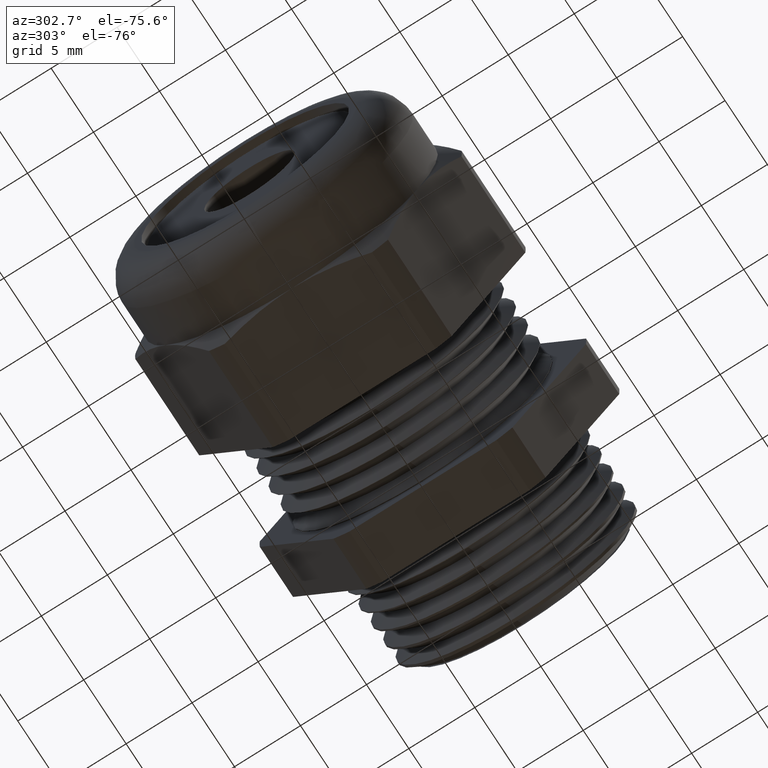
[diagram: clean part render]
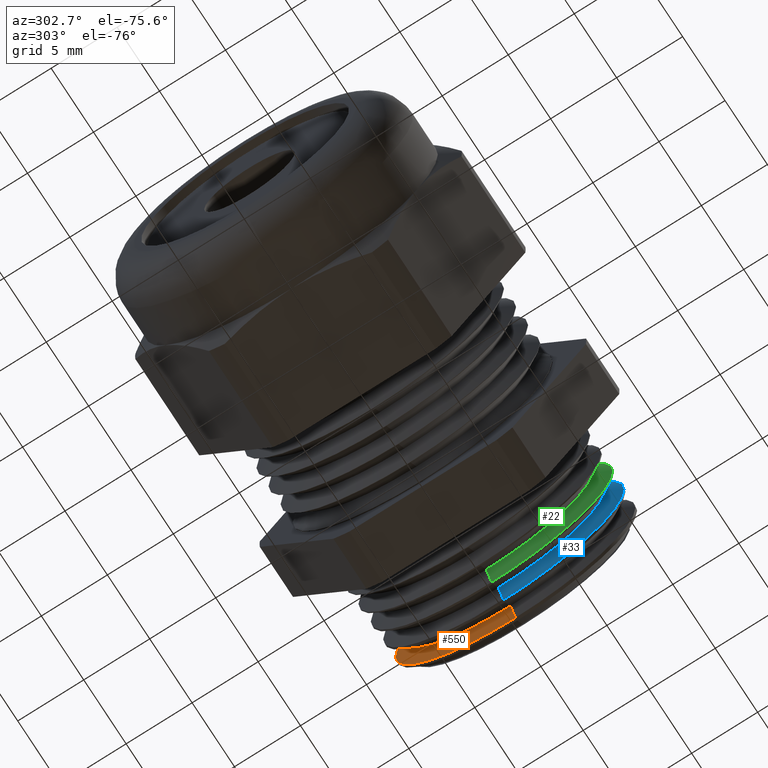
[diagram: same view with three faces highlighted in distinct colors, each labeled with its STEP entity id]
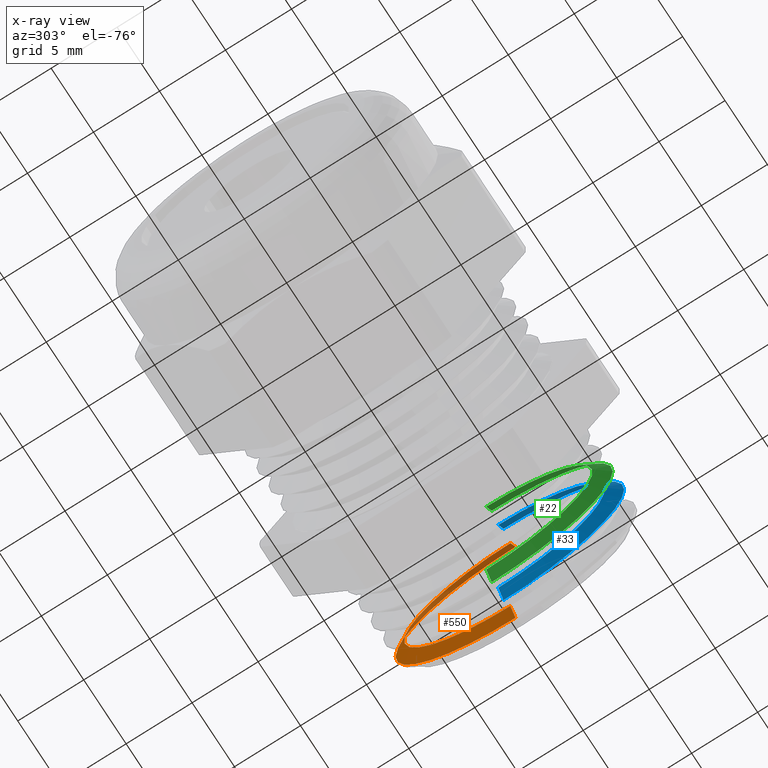
[diagram: x-ray of the same camera — body ghosted, the three highlighted faces saturated]
A machine part, auxiliary view with three faces highlighted in distinct colors.
The next image is the same camera in x-ray (body ghosted, the three faces saturated) — at least one of them is partly hidden behind the body in this view.
Their STEP definitions:

[orange] entity #550 — the highlighted conical surface has half-angle 60 deg.
#501 = ORIENTED_EDGE ( 'NONE', *, *, #504, .F. ) ;
#504 = EDGE_CURVE ( 'NONE', #548, #522, #3423, .T. ) ;
#522 = VERTEX_POINT ( 'NONE', #3503 ) ;
#533 = EDGE_CURVE ( 'NONE', #535, #522, #3541, .T. ) ;
#534 = ORIENTED_EDGE ( 'NONE', *, *, #533, .T. ) ;
#535 = VERTEX_POINT ( 'NONE', #3536 ) ;
#541 = VERTEX_POINT ( 'NONE', #3524 ) ;
#542 = ORIENTED_EDGE ( 'NONE', *, *, #553, .T. ) ;
#547 = EDGE_CURVE ( 'NONE', #541, #548, #796, .T. ) ;
#548 = VERTEX_POINT ( 'NONE', #791 ) ;
#549 = ORIENTED_EDGE ( 'NONE', *, *, #547, .F. ) ;
#550 = ADVANCED_FACE ( 'NONE', ( #790 ), #789, .T. ) ;
#551 = EDGE_LOOP ( 'NONE', ( #549, #542, #534, #501 ) ) ;
#553 = EDGE_CURVE ( 'NONE', #541, #535, #788, .T. ) ;
#781 = DIRECTION ( 'NONE',  ( 0.5000000000000010000, 1.060575238724906100E-016, 0.8660254037844379300 ) ) ;
#782 = VECTOR ( 'NONE', #781, 39.37007874015748900 ) ;
#783 = CARTESIAN_POINT ( 'NONE',  ( 0.2519316979139036800, 3.877487473227224100E-017, 0.3166208800714525600 ) ) ;
#784 = DIRECTION ( 'NONE',  ( 0.0000000000000000000, 0.0000000000000000000, -1.000000000000000000 ) ) ;
#785 = DIRECTION ( 'NONE',  ( 1.000000000000000000, 0.0000000000000000000, 0.0000000000000000000 ) ) ;
#786 = CARTESIAN_POINT ( 'NONE',  ( 0.2519316979139036800, 0.0000000000000000000, 0.0000000000000000000 ) ) ;
#787 = AXIS2_PLACEMENT_3D ( 'NONE', #786, #785, #784 ) ;
#788 = LINE ( 'NONE', #783, #782 ) ;
#789 = CONICAL_SURFACE ( 'NONE', #787, 0.3166208800714525600, 1.047197551196596500 ) ;
#790 = FACE_OUTER_BOUND ( 'NONE', #551, .T. ) ;
#791 = CARTESIAN_POINT ( 'NONE',  ( 0.2519316979139036800, 4.137256078826623000E-017, -0.3166208800714525600 ) ) ;
#792 = DIRECTION ( 'NONE',  ( 0.0000000000000000000, 0.0000000000000000000, 1.000000000000000000 ) ) ;
#793 = DIRECTION ( 'NONE',  ( -1.000000000000000000, 0.0000000000000000000, 0.0000000000000000000 ) ) ;
#794 = CARTESIAN_POINT ( 'NONE',  ( 0.2519316979139036800, 0.0000000000000000000, 0.0000000000000000000 ) ) ;
#795 = AXIS2_PLACEMENT_3D ( 'NONE', #794, #793, #792 ) ;
#796 = CIRCLE ( 'NONE', #795, 0.3166208800714525600 ) ;
#3423 = LINE ( 'NONE', #3487, #3486 ) ;
#3485 = DIRECTION ( 'NONE',  ( 0.5000000000000010000, 0.0000000000000000000, -0.8660254037844379300 ) ) ;
#3486 = VECTOR ( 'NONE', #3485, 39.37007874015748900 ) ;
#3487 = CARTESIAN_POINT ( 'NONE',  ( 0.2519316979139036800, 0.0000000000000000000, -0.3166208800714525600 ) ) ;
#3503 = CARTESIAN_POINT ( 'NONE',  ( 0.2756953103750446900, 4.381549452406048200E-017, -0.3577806642255264000 ) ) ;
#3524 = CARTESIAN_POINT ( 'NONE',  ( 0.2519316979139036800, 0.0000000000000000000, 0.3166208800714525600 ) ) ;
#3536 = CARTESIAN_POINT ( 'NONE',  ( 0.2756953103750446900, 0.0000000000000000000, 0.3577806642255264000 ) ) ;
#3537 = DIRECTION ( 'NONE',  ( 0.0000000000000000000, 0.0000000000000000000, -1.000000000000000000 ) ) ;
#3538 = DIRECTION ( 'NONE',  ( -1.000000000000000000, 0.0000000000000000000, 0.0000000000000000000 ) ) ;
#3539 = CARTESIAN_POINT ( 'NONE',  ( 0.2756953103750446900, 0.0000000000000000000, 0.0000000000000000000 ) ) ;
#3540 = AXIS2_PLACEMENT_3D ( 'NONE', #3539, #3538, #3537 ) ;
#3541 = CIRCLE ( 'NONE', #3540, 0.3577806642255263500 ) ;

[blue] entity #33 — the highlighted conical surface has half-angle 60 deg.
#25 = ORIENTED_EDGE ( 'NONE', *, *, #2158, .T. ) ;
#29 = EDGE_LOOP ( 'NONE', ( #30, #31, #32, #25 ) ) ;
#30 = ORIENTED_EDGE ( 'NONE', *, *, #568, .F. ) ;
#31 = ORIENTED_EDGE ( 'NONE', *, *, #409, .F. ) ;
#32 = ORIENTED_EDGE ( 'NONE', *, *, #560, .T. ) ;
#33 = ADVANCED_FACE ( 'NONE', ( #2611 ), #2610, .T. ) ;
#409 = EDGE_CURVE ( 'NONE', #585, #593, #3329, .T. ) ;
#556 = VERTEX_POINT ( 'NONE', #774 ) ;
#560 = EDGE_CURVE ( 'NONE', #585, #556, #830, .T. ) ;
#565 = VERTEX_POINT ( 'NONE', #811 ) ;
#568 = EDGE_CURVE ( 'NONE', #593, #565, #810, .T. ) ;
#585 = VERTEX_POINT ( 'NONE', #847 ) ;
#593 = VERTEX_POINT ( 'NONE', #894 ) ;
#774 = CARTESIAN_POINT ( 'NONE',  ( 0.2205293343625839300, 4.399240356199792900E-017, -0.3592252361466763400 ) ) ;
#807 = DIRECTION ( 'NONE',  ( 0.5000000000000010000, 1.060575238724906100E-016, 0.8660254037844379300 ) ) ;
#808 = VECTOR ( 'NONE', #807, 39.37007874015748900 ) ;
#809 = CARTESIAN_POINT ( 'NONE',  ( 0.1959316979139036900, 3.877487473227224100E-017, 0.3166208800714525600 ) ) ;
#810 = LINE ( 'NONE', #809, #808 ) ;
#811 = CARTESIAN_POINT ( 'NONE',  ( 0.2205293343625839300, 0.0000000000000000000, 0.3592252361466763400 ) ) ;
#823 = DIRECTION ( 'NONE',  ( 0.5000000000000010000, 0.0000000000000000000, -0.8660254037844379300 ) ) ;
#824 = VECTOR ( 'NONE', #823, 39.37007874015748900 ) ;
#825 = CARTESIAN_POINT ( 'NONE',  ( 0.1959316979139036900, 0.0000000000000000000, -0.3166208800714525600 ) ) ;
#830 = LINE ( 'NONE', #825, #824 ) ;
#847 = CARTESIAN_POINT ( 'NONE',  ( 0.1959316979139036900, 4.146373095384349700E-017, -0.3166208800714525600 ) ) ;
#894 = CARTESIAN_POINT ( 'NONE',  ( 0.1959316979139036900, 0.0000000000000000000, 0.3166208800714525600 ) ) ;
#1252 = DIRECTION ( 'NONE',  ( 0.0000000000000000000, 0.0000000000000000000, -1.000000000000000000 ) ) ;
#1253 = DIRECTION ( 'NONE',  ( -1.000000000000000000, 0.0000000000000000000, 0.0000000000000000000 ) ) ;
#1254 = CARTESIAN_POINT ( 'NONE',  ( 0.2205293343625839300, 0.0000000000000000000, 0.0000000000000000000 ) ) ;
#1255 = AXIS2_PLACEMENT_3D ( 'NONE', #1254, #1253, #1252 ) ;
#1256 = CIRCLE ( 'NONE', #1255, 0.3592252361466763400 ) ;
#2158 = EDGE_CURVE ( 'NONE', #556, #565, #1256, .T. ) ;
#2606 = DIRECTION ( 'NONE',  ( 0.0000000000000000000, 0.0000000000000000000, -1.000000000000000000 ) ) ;
#2607 = DIRECTION ( 'NONE',  ( 1.000000000000000000, 0.0000000000000000000, 0.0000000000000000000 ) ) ;
#2608 = AXIS2_PLACEMENT_3D ( 'NONE', #2615, #2607, #2606 ) ;
#2610 = CONICAL_SURFACE ( 'NONE', #2608, 0.3166208800714525600, 1.047197551196596500 ) ;
#2611 = FACE_OUTER_BOUND ( 'NONE', #29, .T. ) ;
#2615 = CARTESIAN_POINT ( 'NONE',  ( 0.1959316979139036900, 0.0000000000000000000, 0.0000000000000000000 ) ) ;
#3325 = DIRECTION ( 'NONE',  ( 0.0000000000000000000, 0.0000000000000000000, 1.000000000000000000 ) ) ;
#3326 = DIRECTION ( 'NONE',  ( -1.000000000000000000, 0.0000000000000000000, 0.0000000000000000000 ) ) ;
#3327 = CARTESIAN_POINT ( 'NONE',  ( 0.1959316979139036900, 0.0000000000000000000, 0.0000000000000000000 ) ) ;
#3328 = AXIS2_PLACEMENT_3D ( 'NONE', #3327, #3326, #3325 ) ;
#3329 = CIRCLE ( 'NONE', #3328, 0.3166208800714525600 ) ;

[green] entity #22 — the highlighted conical surface has half-angle 60 deg.
#4 = EDGE_CURVE ( 'NONE', #2265, #2264, #2583, .T. ) ;
#16 = ORIENTED_EDGE ( 'NONE', *, *, #1824, .T. ) ;
#17 = ORIENTED_EDGE ( 'NONE', *, *, #4, .F. ) ;
#18 = ORIENTED_EDGE ( 'NONE', *, *, #2307, .T. ) ;
#19 = ORIENTED_EDGE ( 'NONE', *, *, #2258, .F. ) ;
#20 = EDGE_LOOP ( 'NONE', ( #19, #17, #18, #16 ) ) ;
#22 = ADVANCED_FACE ( 'NONE', ( #2559 ), #2558, .T. ) ;
#1171 = DIRECTION ( 'NONE',  ( 0.0000000000000000000, 0.0000000000000000000, -1.000000000000000000 ) ) ;
#1172 = DIRECTION ( 'NONE',  ( -1.000000000000000000, 0.0000000000000000000, 0.0000000000000000000 ) ) ;
#1173 = CARTESIAN_POINT ( 'NONE',  ( 0.1653633583501253300, 0.0000000000000000000, 0.0000000000000000000 ) ) ;
#1174 = AXIS2_PLACEMENT_3D ( 'NONE', #1173, #1172, #1171 ) ;
#1175 = CIRCLE ( 'NONE', #1174, 0.3606698080678262300 ) ;
#1401 = CARTESIAN_POINT ( 'NONE',  ( 0.1653633583501253300, 0.0000000000000000000, 0.3606698080678262300 ) ) ;
#1402 = DIRECTION ( 'NONE',  ( 0.5000000000000010000, 1.060575238724906100E-016, 0.8660254037844379300 ) ) ;
#1403 = VECTOR ( 'NONE', #1402, 39.37007874015748900 ) ;
#1404 = CARTESIAN_POINT ( 'NONE',  ( 0.1399316979139036700, 3.877487473227224100E-017, 0.3166208800714525600 ) ) ;
#1405 = LINE ( 'NONE', #1404, #1403 ) ;
#1449 = CARTESIAN_POINT ( 'NONE',  ( 0.1399316979139036700, 4.155490111942077000E-017, -0.3166208800714525600 ) ) ;
#1450 = CARTESIAN_POINT ( 'NONE',  ( 0.1399316979139036700, 0.0000000000000000000, 0.3166208800714525600 ) ) ;
#1497 = DIRECTION ( 'NONE',  ( 0.5000000000000010000, 0.0000000000000000000, -0.8660254037844379300 ) ) ;
#1498 = VECTOR ( 'NONE', #1497, 39.37007874015748900 ) ;
#1499 = CARTESIAN_POINT ( 'NONE',  ( 0.1399316979139036700, 0.0000000000000000000, -0.3166208800714525600 ) ) ;
#1500 = LINE ( 'NONE', #1499, #1498 ) ;
#1501 = CARTESIAN_POINT ( 'NONE',  ( 0.1653633583501253300, 4.416931259993536400E-017, -0.3606698080678262300 ) ) ;
#1824 = EDGE_CURVE ( 'NONE', #2303, #2259, #1175, .T. ) ;
#2258 = EDGE_CURVE ( 'NONE', #2264, #2259, #1405, .T. ) ;
#2259 = VERTEX_POINT ( 'NONE', #1401 ) ;
#2264 = VERTEX_POINT ( 'NONE', #1450 ) ;
#2265 = VERTEX_POINT ( 'NONE', #1449 ) ;
#2303 = VERTEX_POINT ( 'NONE', #1501 ) ;
#2307 = EDGE_CURVE ( 'NONE', #2265, #2303, #1500, .T. ) ;
#2556 = CARTESIAN_POINT ( 'NONE',  ( 0.1399316979139036700, 0.0000000000000000000, 0.0000000000000000000 ) ) ;
#2557 = AXIS2_PLACEMENT_3D ( 'NONE', #2556, #2563, #2618 ) ;
#2558 = CONICAL_SURFACE ( 'NONE', #2557, 0.3166208800714525600, 1.047197551196596500 ) ;
#2559 = FACE_OUTER_BOUND ( 'NONE', #20, .T. ) ;
#2563 = DIRECTION ( 'NONE',  ( 1.000000000000000000, 0.0000000000000000000, 0.0000000000000000000 ) ) ;
#2580 = DIRECTION ( 'NONE',  ( 0.0000000000000000000, 0.0000000000000000000, 1.000000000000000000 ) ) ;
#2581 = DIRECTION ( 'NONE',  ( -1.000000000000000000, 0.0000000000000000000, 0.0000000000000000000 ) ) ;
#2582 = AXIS2_PLACEMENT_3D ( 'NONE', #2589, #2581, #2580 ) ;
#2583 = CIRCLE ( 'NONE', #2582, 0.3166208800714525600 ) ;
#2589 = CARTESIAN_POINT ( 'NONE',  ( 0.1399316979139036700, 0.0000000000000000000, 0.0000000000000000000 ) ) ;
#2618 = DIRECTION ( 'NONE',  ( 0.0000000000000000000, 0.0000000000000000000, -1.000000000000000000 ) ) ;